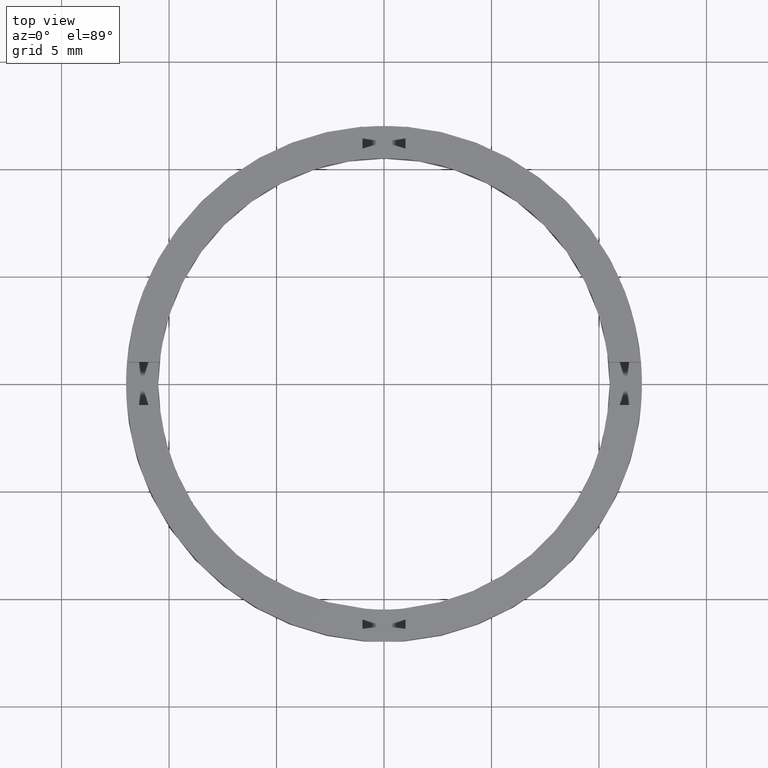
[diagram: clean part render]
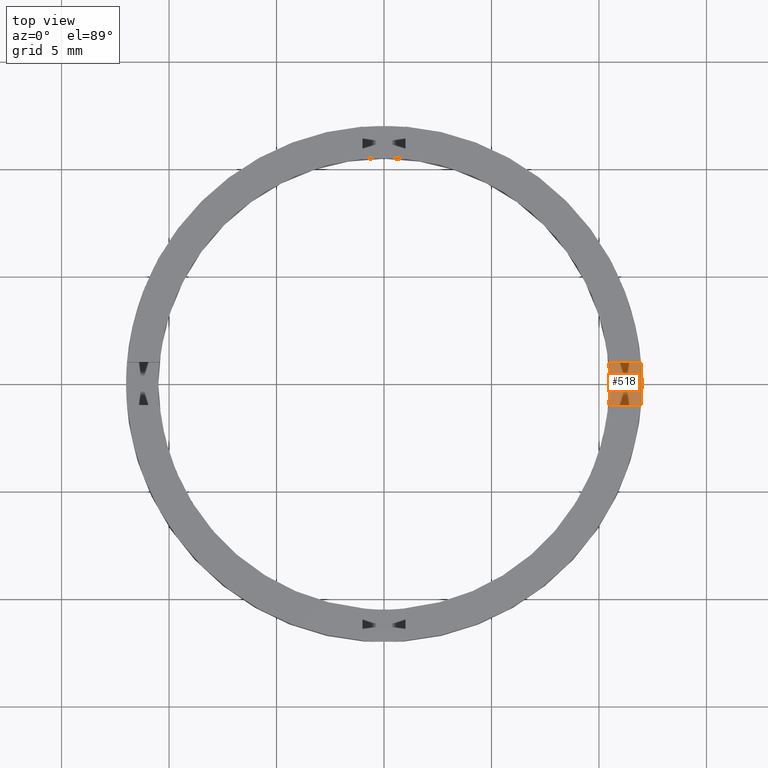
[diagram: same view with one face highlighted and labeled with its STEP entity id]
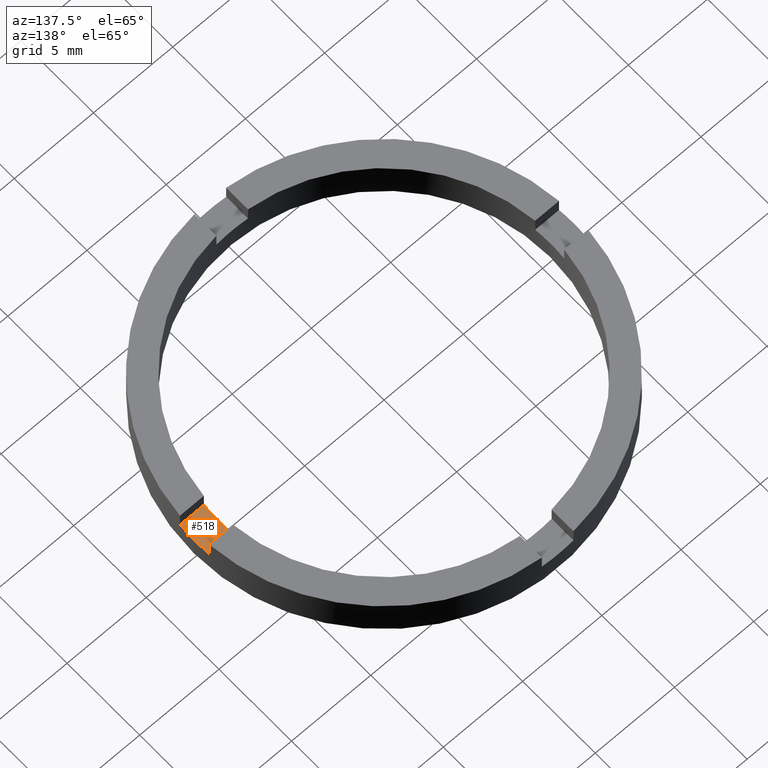
[diagram: same view with one face highlighted and labeled with its STEP entity id]
A machine part, top view. The second image highlights one B-rep face of the part: STEP entity #518.
A second angle (auxiliary view) of the same face is appended — the face is thin or edge-on in the first view.
In plain terms, the highlighted planar face has unit normal (0, 0, 1).
Its self-contained STEP definition (entity closure, byte-faithful):
#9 = CARTESIAN_POINT ( 'NONE',  ( 0.000000000000000000, 0.000000000000000000, 1.500000000000000000 ) ) ;
#21 = DIRECTION ( 'NONE',  ( 1.000000000000000000, 0.000000000000000000, 0.000000000000000000 ) ) ;
#25 = DIRECTION ( 'NONE',  ( 0.000000000000000000, 0.000000000000000000, 1.000000000000000000 ) ) ;
#53 = DIRECTION ( 'NONE',  ( 0.000000000000000000, 0.000000000000000000, 1.000000000000000000 ) ) ;
#60 = AXIS2_PLACEMENT_3D ( 'NONE', #83, #577, #270 ) ;
#83 = CARTESIAN_POINT ( 'NONE',  ( 0.000000000000000000, 0.000000000000000000, 1.500000000000000000 ) ) ;
#93 = EDGE_CURVE ( 'NONE', #604, #264, #441, .T. ) ;
#101 = DIRECTION ( 'NONE',  ( 0.000000000000000000, 0.000000000000000000, 1.000000000000000000 ) ) ;
#115 = ORIENTED_EDGE ( 'NONE', *, *, #746, .F. ) ;
#158 = CARTESIAN_POINT ( 'NONE',  ( 1.999999999999998224, -1.000000000000160316, 1.500000000000000000 ) ) ;
#173 = FACE_OUTER_BOUND ( 'NONE', #212, .T. ) ;
#198 = DIRECTION ( 'NONE',  ( 1.000000000000000000, 0.000000000000000000, 0.000000000000000000 ) ) ;
#212 = EDGE_LOOP ( 'NONE', ( #261, #772, #344, #115, #242, #615 ) ) ;
#219 = EDGE_CURVE ( 'NONE', #264, #610, #435, .T. ) ;
#233 = AXIS2_PLACEMENT_3D ( 'NONE', #502, #515, #572 ) ;
#234 = VERTEX_POINT ( 'NONE', #629 ) ;
#242 = ORIENTED_EDGE ( 'NONE', *, *, #585, .F. ) ;
#253 = DIRECTION ( 'NONE',  ( 1.000000000000000000, 0.000000000000000000, -0.000000000000000000 ) ) ;
#261 = ORIENTED_EDGE ( 'NONE', *, *, #536, .T. ) ;
#264 = VERTEX_POINT ( 'NONE', #488 ) ;
#270 = DIRECTION ( 'NONE',  ( 1.000000000000000000, 0.000000000000000000, 0.000000000000000000 ) ) ;
#275 = DIRECTION ( 'NONE',  ( -1.000000000000000000, -4.336808689942018352E-17, -0.000000000000000000 ) ) ;
#285 = CIRCLE ( 'NONE', #429, 10.49999999999999822 ) ;
#314 = AXIS2_PLACEMENT_3D ( 'NONE', #702, #25, #21 ) ;
#344 = ORIENTED_EDGE ( 'NONE', *, *, #219, .T. ) ;
#349 = CARTESIAN_POINT ( 'NONE',  ( 10.49999999999999822, 1.285879139104720633E-15, 1.500000000000000000 ) ) ;
#354 = VERTEX_POINT ( 'NONE', #417 ) ;
#408 = VECTOR ( 'NONE', #275, 1000.000000000000000 ) ;
#417 = CARTESIAN_POINT ( 'NONE',  ( 10.45227248018341903, -1.000000000000159872, 1.500000000000000000 ) ) ;
#429 = AXIS2_PLACEMENT_3D ( 'NONE', #733, #101, #198 ) ;
#435 = LINE ( 'NONE', #580, #408 ) ;
#440 = CIRCLE ( 'NONE', #233, 12.00000000000000178 ) ;
#441 = CIRCLE ( 'NONE', #314, 12.00000000000000178 ) ;
#463 = DIRECTION ( 'NONE',  ( 1.000000000000000000, 4.336808689942018352E-17, 0.000000000000000000 ) ) ;
#473 = CIRCLE ( 'NONE', #60, 10.49999999999999822 ) ;
#488 = CARTESIAN_POINT ( 'NONE',  ( 11.95826074310141429, 0.9999999999998402389, 1.500000000000000000 ) ) ;
#491 = AXIS2_PLACEMENT_3D ( 'NONE', #9, #53, #253 ) ;
#502 = CARTESIAN_POINT ( 'NONE',  ( 0.000000000000000000, 0.000000000000000000, 1.500000000000000000 ) ) ;
#515 = DIRECTION ( 'NONE',  ( 0.000000000000000000, 0.000000000000000000, 1.000000000000000000 ) ) ;
#518 = ADVANCED_FACE ( 'NONE', ( #173 ), #740, .T. ) ;
#535 = VERTEX_POINT ( 'NONE', #349 ) ;
#536 = EDGE_CURVE ( 'NONE', #234, #604, #440, .T. ) ;
#564 = VECTOR ( 'NONE', #463, 1000.000000000000000 ) ;
#572 = DIRECTION ( 'NONE',  ( 1.000000000000000000, 0.000000000000000000, 0.000000000000000000 ) ) ;
#577 = DIRECTION ( 'NONE',  ( 0.000000000000000000, 0.000000000000000000, 1.000000000000000000 ) ) ;
#580 = CARTESIAN_POINT ( 'NONE',  ( 1.999999999999998224, 0.9999999999998397948, 1.500000000000000000 ) ) ;
#585 = EDGE_CURVE ( 'NONE', #354, #535, #473, .T. ) ;
#604 = VERTEX_POINT ( 'NONE', #636 ) ;
#610 = VERTEX_POINT ( 'NONE', #706 ) ;
#615 = ORIENTED_EDGE ( 'NONE', *, *, #626, .T. ) ;
#626 = EDGE_CURVE ( 'NONE', #354, #234, #728, .T. ) ;
#629 = CARTESIAN_POINT ( 'NONE',  ( 11.95826074310138765, -1.000000000000159872, 1.500000000000000000 ) ) ;
#636 = CARTESIAN_POINT ( 'NONE',  ( 12.00000000000000178, 1.469576158976824144E-15, 1.500000000000000000 ) ) ;
#702 = CARTESIAN_POINT ( 'NONE',  ( 0.000000000000000000, 0.000000000000000000, 1.500000000000000000 ) ) ;
#706 = CARTESIAN_POINT ( 'NONE',  ( 10.45227248018345101, 0.9999999999998402389, 1.500000000000000000 ) ) ;
#728 = LINE ( 'NONE', #158, #564 ) ;
#733 = CARTESIAN_POINT ( 'NONE',  ( 0.000000000000000000, 0.000000000000000000, 1.500000000000000000 ) ) ;
#740 = PLANE ( 'NONE',  #491 ) ;
#746 = EDGE_CURVE ( 'NONE', #535, #610, #285, .T. ) ;
#772 = ORIENTED_EDGE ( 'NONE', *, *, #93, .T. ) ;